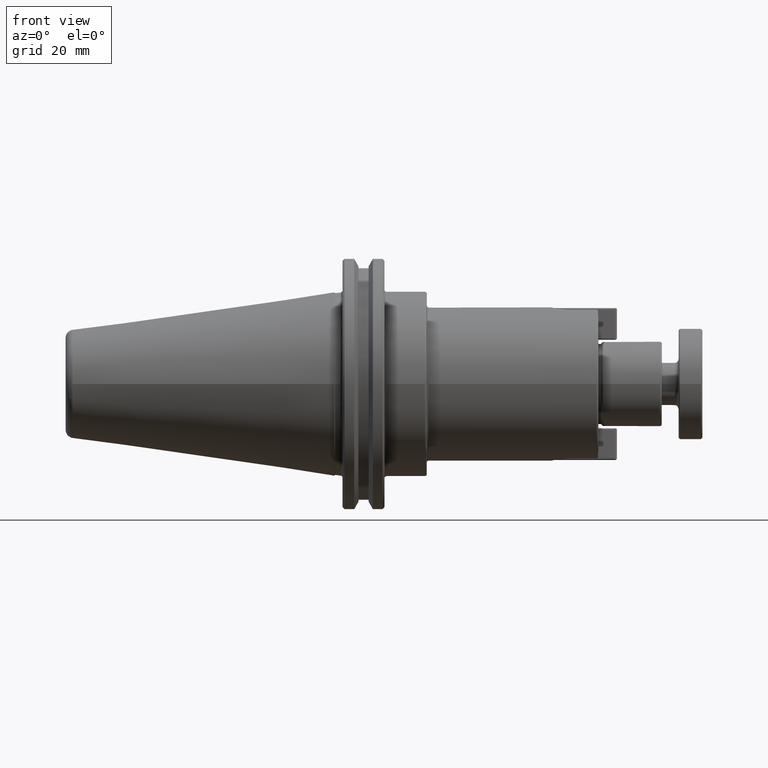
[diagram: clean part render]
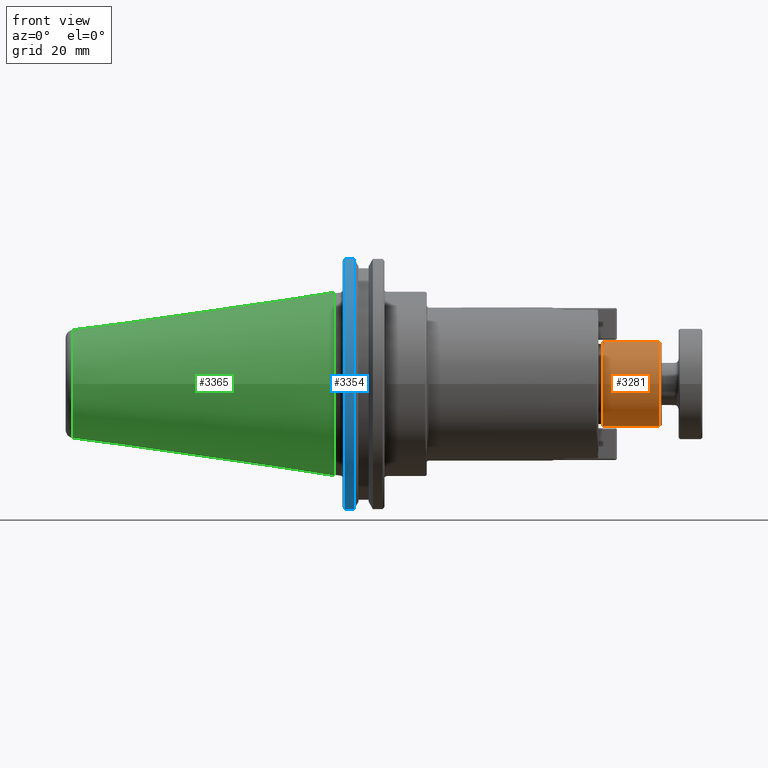
[diagram: same view with three faces highlighted in distinct colors, each labeled with its STEP entity id]
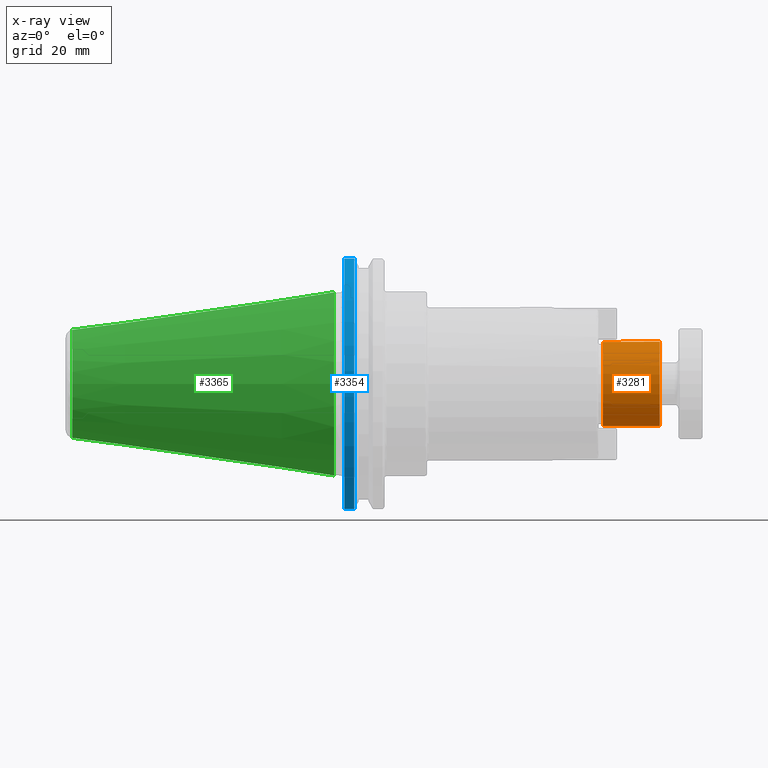
[diagram: x-ray of the same camera — body ghosted, the three highlighted faces saturated]
A machine part, front view with three faces highlighted in distinct colors.
The next image is the same camera in x-ray (body ghosted, the three faces saturated) — at least one of them is partly hidden behind the body in this view.
Their STEP definitions:

[orange] entity #3281 — the highlighted cylindrical surface (bore or boss wall) has radius 15.9969 mm, axis along (1, 0, 0).
#337=FACE_OUTER_BOUND('',#525,.T.);
#525=EDGE_LOOP('',(#2320,#2321,#2322,#2323,#2324));
#758=CIRCLE('',#3673,0.6298);
#759=CIRCLE('',#3674,0.6298);
#760=CIRCLE('',#3676,0.6298);
#894=LINE('',#5282,#1120);
#1120=VECTOR('',#4184,0.6298);
#1388=VERTEX_POINT('',#5275);
#1389=VERTEX_POINT('',#5277);
#1390=VERTEX_POINT('',#5281);
#1739=EDGE_CURVE('',#1388,#1389,#758,.T.);
#1740=EDGE_CURVE('',#1389,#1388,#759,.T.);
#1741=EDGE_CURVE('',#1389,#1390,#894,.T.);
#1742=EDGE_CURVE('',#1390,#1390,#760,.T.);
#2320=ORIENTED_EDGE('',*,*,#1740,.F.);
#2321=ORIENTED_EDGE('',*,*,#1741,.T.);
#2322=ORIENTED_EDGE('',*,*,#1742,.T.);
#2323=ORIENTED_EDGE('',*,*,#1741,.F.);
#2324=ORIENTED_EDGE('',*,*,#1739,.F.);
#3082=CYLINDRICAL_SURFACE('',#3675,0.6298);
#3281=ADVANCED_FACE('',(#337),#3082,.T.);
#3673=AXIS2_PLACEMENT_3D('',#5278,#4178,#4179);
#3674=AXIS2_PLACEMENT_3D('',#5279,#4180,#4181);
#3675=AXIS2_PLACEMENT_3D('',#5280,#4182,#4183);
#3676=AXIS2_PLACEMENT_3D('',#5283,#4185,#4186);
#4178=DIRECTION('center_axis',(1.,1.85651596121548E-16,0.));
#4179=DIRECTION('ref_axis',(1.82181034826769E-16,-1.,1.22464679914735E-16));
#4180=DIRECTION('center_axis',(1.,1.85651596121548E-16,0.));
#4181=DIRECTION('ref_axis',(1.82181034826769E-16,-1.,1.22464679914735E-16));
#4182=DIRECTION('center_axis',(1.,1.85651596121548E-16,0.));
#4183=DIRECTION('ref_axis',(-1.2449935796189E-13,1.,0.));
#4184=DIRECTION('',(-1.,-1.85651596121548E-16,0.));
#4185=DIRECTION('center_axis',(1.,1.85651596121548E-16,0.));
#4186=DIRECTION('ref_axis',(-1.2449935796189E-13,1.,0.));
#5275=CARTESIAN_POINT('',(4.85188976377953,3.98107443590964E-16,0.6298));
#5277=CARTESIAN_POINT('',(4.85188976377964,-0.629799999999999,-7.71282554103003E-17));
#5278=CARTESIAN_POINT('Origin',(4.85188976377953,4.75235699001264E-16,0.));
#5279=CARTESIAN_POINT('Origin',(4.85188976377953,4.75235699001264E-16,0.));
#5280=CARTESIAN_POINT('Origin',(4.40944881889764,3.93095831394415E-16,0.));
#5281=CARTESIAN_POINT('',(4.00347591144729,-0.629799999999999,-7.71282554103003E-17));
#5282=CARTESIAN_POINT('',(4.40944881889772,-0.629799999999999,-7.71282554103003E-17));
#5283=CARTESIAN_POINT('Origin',(4.00347591144721,3.17726313144139E-16,0.));

[blue] entity #3354 — the highlighted cylindrical surface (partial cylindrical patch) has radius 49.2125 mm, axis along (1, 0, 0).
#410=FACE_OUTER_BOUND('',#610,.T.);
#610=EDGE_LOOP('',(#2720,#2721,#2722,#2723));
#802=CIRCLE('',#3798,1.9375);
#803=CIRCLE('',#3800,1.9375);
#939=LINE('',#6428,#1165);
#987=LINE('',#6667,#1213);
#1165=VECTOR('',#4325,0.393700787401575);
#1213=VECTOR('',#4519,0.393700787401575);
#1464=VERTEX_POINT('',#6423);
#1465=VERTEX_POINT('',#6427);
#1522=VERTEX_POINT('',#6662);
#1523=VERTEX_POINT('',#6666);
#1847=EDGE_CURVE('',#1464,#1465,#939,.T.);
#1948=EDGE_CURVE('',#1522,#1523,#987,.T.);
#1950=EDGE_CURVE('',#1523,#1464,#802,.T.);
#1951=EDGE_CURVE('',#1522,#1465,#803,.T.);
#2720=ORIENTED_EDGE('',*,*,#1948,.F.);
#2721=ORIENTED_EDGE('',*,*,#1951,.T.);
#2722=ORIENTED_EDGE('',*,*,#1847,.F.);
#2723=ORIENTED_EDGE('',*,*,#1950,.F.);
#3102=CYLINDRICAL_SURFACE('',#3799,1.9375);
#3354=ADVANCED_FACE('',(#410),#3102,.T.);
#3798=AXIS2_PLACEMENT_3D('',#6672,#4522,#4523);
#3799=AXIS2_PLACEMENT_3D('',#6673,#4524,#4525);
#3800=AXIS2_PLACEMENT_3D('',#6674,#4526,#4527);
#4325=DIRECTION('',(1.,0.,0.));
#4519=DIRECTION('',(-1.,0.,0.));
#4522=DIRECTION('center_axis',(-1.,0.,0.));
#4523=DIRECTION('ref_axis',(1.03378135458692E-13,-1.,0.));
#4524=DIRECTION('center_axis',(1.,0.,0.));
#4525=DIRECTION('ref_axis',(-1.03378135458692E-13,-1.,-2.05505683330176E-14));
#4526=DIRECTION('center_axis',(-1.,0.,0.));
#4527=DIRECTION('ref_axis',(-1.03378135458692E-13,1.,0.));
#6423=CARTESIAN_POINT('',(0.155,-0.527075588370635,1.86442955730265));
#6427=CARTESIAN_POINT('',(0.299526127773358,-0.527075588370635,1.86442955730265));
#6428=CARTESIAN_POINT('',(0.4375,-0.527075588370635,1.86442955730265));
#6662=CARTESIAN_POINT('',(0.299526127773358,-0.527075588370557,-1.86442955730267));
#6666=CARTESIAN_POINT('',(0.155,-0.527075588370557,-1.86442955730267));
#6667=CARTESIAN_POINT('',(0.4375,-0.527075588370557,-1.86442955730267));
#6672=CARTESIAN_POINT('Origin',(0.155,0.,0.));
#6673=CARTESIAN_POINT('Origin',(0.4375,0.,0.));
#6674=CARTESIAN_POINT('Origin',(0.299526127773358,0.,0.));

[green] entity #3365 — the highlighted conical surface has half-angle 8.297 deg.
#88=CONICAL_SURFACE('',#3821,1.08333850135476,0.144809968037969);
#421=FACE_OUTER_BOUND('',#622,.T.);
#622=EDGE_LOOP('',(#2767,#2768,#2769,#2770,#2771));
#805=CIRCLE('',#3806,1.375);
#810=CIRCLE('',#3816,0.806651410560632);
#811=CIRCLE('',#3817,0.806651410560632);
#994=LINE('',#6714,#1220);
#1220=VECTOR('',#4576,1.08333850135478);
#1525=VERTEX_POINT('',#6685);
#1530=VERTEX_POINT('',#6705);
#1531=VERTEX_POINT('',#6706);
#1956=EDGE_CURVE('',#1525,#1525,#805,.T.);
#1965=EDGE_CURVE('',#1530,#1531,#810,.T.);
#1966=EDGE_CURVE('',#1531,#1530,#811,.T.);
#1969=EDGE_CURVE('',#1525,#1531,#994,.T.);
#2767=ORIENTED_EDGE('',*,*,#1956,.F.);
#2768=ORIENTED_EDGE('',*,*,#1969,.T.);
#2769=ORIENTED_EDGE('',*,*,#1965,.F.);
#2770=ORIENTED_EDGE('',*,*,#1966,.F.);
#2771=ORIENTED_EDGE('',*,*,#1969,.F.);
#3365=ADVANCED_FACE('',(#421),#88,.T.);
#3806=AXIS2_PLACEMENT_3D('',#6687,#4540,#4541);
#3816=AXIS2_PLACEMENT_3D('',#6707,#4564,#4565);
#3817=AXIS2_PLACEMENT_3D('',#6708,#4566,#4567);
#3821=AXIS2_PLACEMENT_3D('',#6713,#4574,#4575);
#4540=DIRECTION('center_axis',(1.,0.,0.));
#4541=DIRECTION('ref_axis',(-1.03378135458692E-13,1.,0.));
#4564=DIRECTION('center_axis',(-1.,-2.60094909854057E-15,3.87529083168744E-29));
#4565=DIRECTION('ref_axis',(2.60094909854057E-15,-1.,1.80477098442361E-30));
#4566=DIRECTION('center_axis',(-1.,-2.60094909854057E-15,3.87529083168744E-29));
#4567=DIRECTION('ref_axis',(2.60094909854057E-15,-1.,1.80477098442361E-30));
#4574=DIRECTION('center_axis',(1.,0.,0.));
#4575=DIRECTION('ref_axis',(-1.03378135458692E-13,1.,0.));
#4576=DIRECTION('',(-0.989533346185555,0.144304389353956,1.76721908525236E-17));
#6685=CARTESIAN_POINT('',(-1.06533876208925E-13,-1.37500000000006,1.68388934882769E-16));
#6687=CARTESIAN_POINT('Origin',(0.,0.,0.));
#6705=CARTESIAN_POINT('',(-3.89731652672247,-9.87863067970751E-17,0.806651410560632));
#6706=CARTESIAN_POINT('',(-3.8973165267225,-0.806651410560616,-9.87863067970756E-17));
#6707=CARTESIAN_POINT('Origin',(-3.89731652672247,1.18890024684269E-14,
-9.87830442692334E-17));
#6708=CARTESIAN_POINT('Origin',(-3.89731652672247,1.18890024684269E-14,
-9.87830442692334E-17));
#6713=CARTESIAN_POINT('Origin',(-2.,0.,0.));
#6714=CARTESIAN_POINT('',(-1.99999999999989,-1.08333850135476,-1.3267070280772E-16));